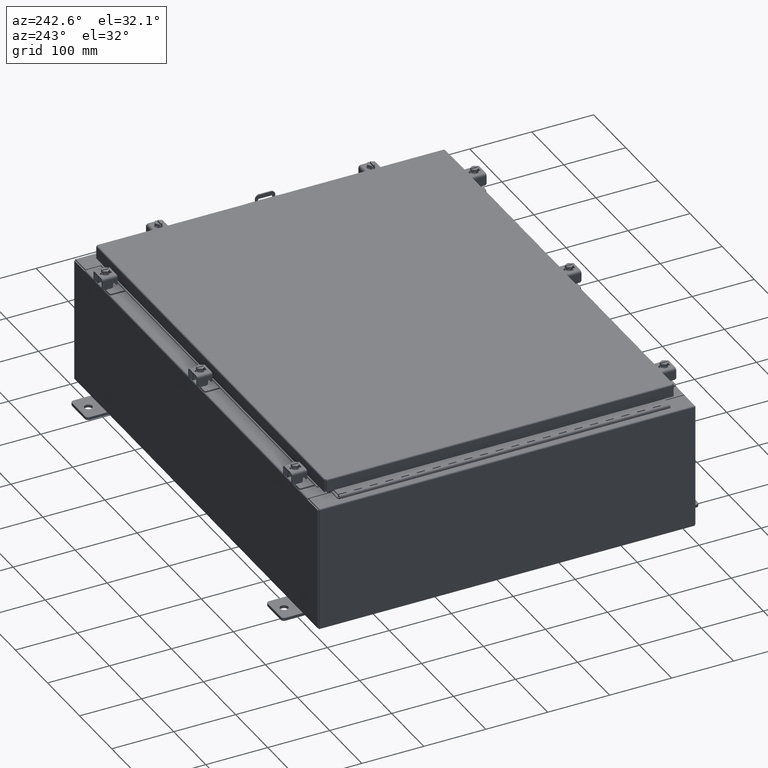
[diagram: clean part render]
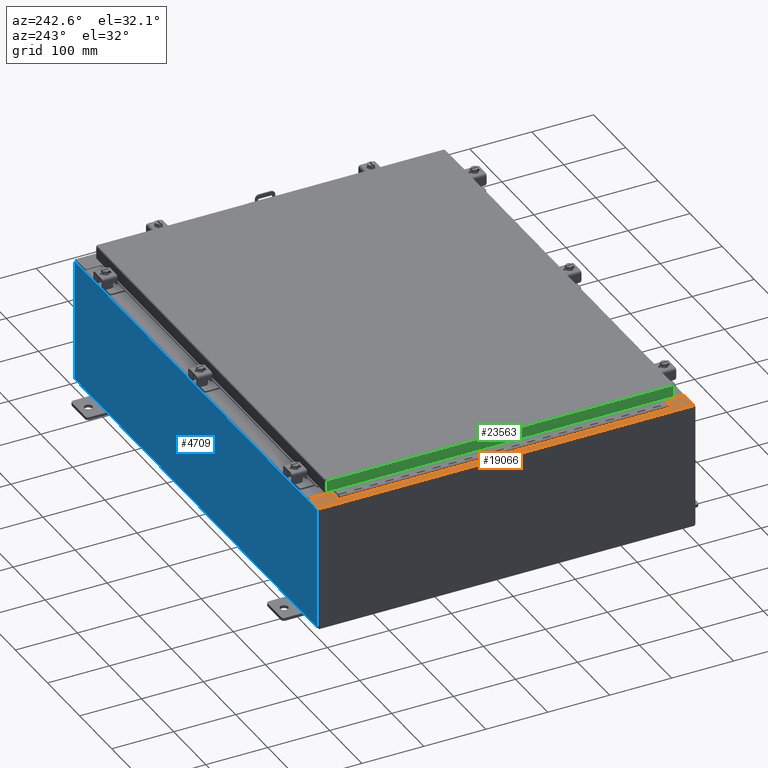
[diagram: same view with three faces highlighted in distinct colors, each labeled with its STEP entity id]
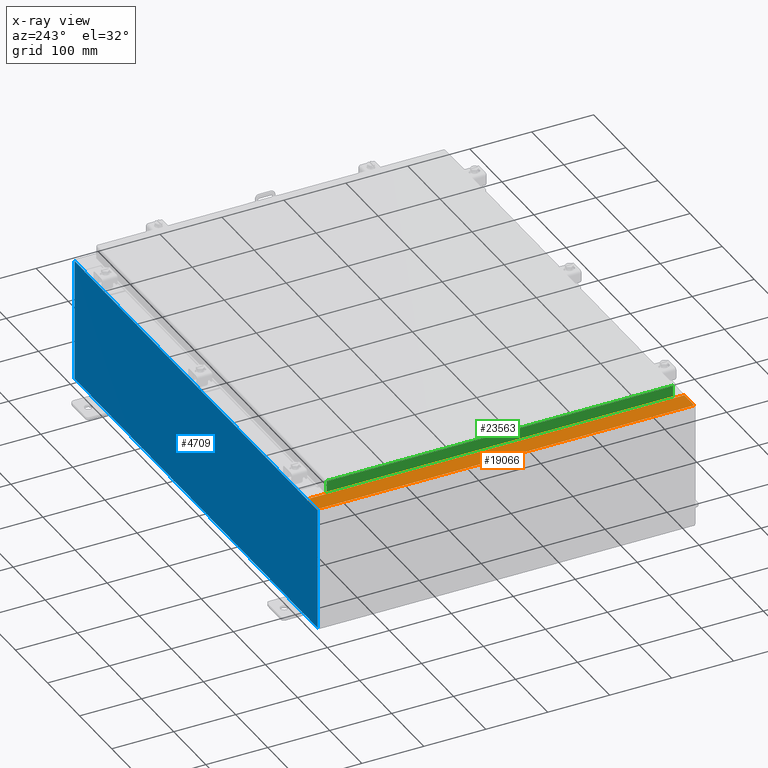
[diagram: x-ray of the same camera — body ghosted, the three highlighted faces saturated]
A machine part, auxiliary view with three faces highlighted in distinct colors.
The next image is the same camera in x-ray (body ghosted, the three faces saturated) — at least one of them is partly hidden behind the body in this view.
Their STEP definitions:

[orange] entity #19066 — the highlighted planar face has unit normal (0, 0, -1).
#35 = LINE ( 'NONE', #18521, #19618 ) ;
#165 = ORIENTED_EDGE ( 'NONE', *, *, #23350, .F. ) ;
#639 = DIRECTION ( 'NONE',  ( 1.000000000000000000, 0.0000000000000000000, 0.0000000000000000000 ) ) ;
#1030 = CARTESIAN_POINT ( 'NONE',  ( -13.69970000000003000, 10.63109999999999600, 7.925300000000008900 ) ) ;
#1387 = CARTESIAN_POINT ( 'NONE',  ( -5.679009539024888300E-014, 0.0000000000000000000, 7.925300000000105700 ) ) ;
#1478 = CARTESIAN_POINT ( 'NONE',  ( -13.71270000000003000, -10.59374999999999800, 7.925300000000008900 ) ) ;
#1771 = VERTEX_POINT ( 'NONE', #22801 ) ;
#2257 = CARTESIAN_POINT ( 'NONE',  ( -13.69970000000003000, 11.92529999999999800, 7.925300000000008900 ) ) ;
#2475 = CARTESIAN_POINT ( 'NONE',  ( -13.75005000000002800, -10.59374999999999800, 7.925300000000007100 ) ) ;
#2698 = CARTESIAN_POINT ( 'NONE',  ( -5.679009539024888300E-014, -11.92530000000000000, 7.925300000000105700 ) ) ;
#2725 = FACE_OUTER_BOUND ( 'NONE', #15579, .T. ) ;
#2940 = VECTOR ( 'NONE', #17045, 39.37007874015748100 ) ;
#3204 = LINE ( 'NONE', #31410, #15995 ) ;
#3210 = VECTOR ( 'NONE', #13629, 39.37007874015748100 ) ;
#3675 = CARTESIAN_POINT ( 'NONE',  ( -13.69970000000003000, -11.92530000000000000, 7.925300000000008900 ) ) ;
#3741 = VERTEX_POINT ( 'NONE', #10444 ) ;
#3927 = LINE ( 'NONE', #2698, #10720 ) ;
#4130 = ORIENTED_EDGE ( 'NONE', *, *, #30244, .T. ) ;
#4387 = EDGE_CURVE ( 'NONE', #7470, #10202, #13239, .T. ) ;
#4537 = VERTEX_POINT ( 'NONE', #3675 ) ;
#4593 = VECTOR ( 'NONE', #26524, 39.37007874015748100 ) ;
#4846 = DIRECTION ( 'NONE',  ( 0.0000000000000000000, 1.000000000000000000, 0.0000000000000000000 ) ) ;
#6518 = PLANE ( 'NONE',  #29465 ) ;
#7470 = VERTEX_POINT ( 'NONE', #27543 ) ;
#7645 = EDGE_CURVE ( 'NONE', #30920, #18163, #9870, .T. ) ;
#8064 = VERTEX_POINT ( 'NONE', #1030 ) ;
#8074 = VECTOR ( 'NONE', #16131, 39.37007874015748100 ) ;
#8963 = CARTESIAN_POINT ( 'NONE',  ( -13.75005000000002800, 10.59374999999999800, 7.925300000000007100 ) ) ;
#9105 = DIRECTION ( 'NONE',  ( 7.132762385546384700E-015, 0.0000000000000000000, -1.000000000000000000 ) ) ;
#9590 = DIRECTION ( 'NONE',  ( -1.000000000000000000, 0.0000000000000000000, 0.0000000000000000000 ) ) ;
#9842 = ORIENTED_EDGE ( 'NONE', *, *, #23535, .T. ) ;
#9870 = CIRCLE ( 'NONE', #19896, 0.01867499999999949400 ) ;
#10021 = LINE ( 'NONE', #16091, #3210 ) ;
#10092 = LINE ( 'NONE', #11767, #22869 ) ;
#10202 = VERTEX_POINT ( 'NONE', #8963 ) ;
#10273 = EDGE_CURVE ( 'NONE', #8064, #7470, #22554, .T. ) ;
#10444 = CARTESIAN_POINT ( 'NONE',  ( -13.69970000000003000, -10.63109999999999800, 7.925300000000008900 ) ) ;
#10720 = VECTOR ( 'NONE', #15448, 39.37007874015748100 ) ;
#10846 = DIRECTION ( 'NONE',  ( -7.132762385546384700E-015, -0.0000000000000000000, 1.000000000000000000 ) ) ;
#11767 = CARTESIAN_POINT ( 'NONE',  ( -13.69970000000003000, 0.0000000000000000000, 7.925300000000008900 ) ) ;
#12028 = CARTESIAN_POINT ( 'NONE',  ( -13.75005000000002800, -10.61242499999999800, 7.925300000000008900 ) ) ;
#12460 = EDGE_CURVE ( 'NONE', #27291, #1771, #3204, .T. ) ;
#13239 = CIRCLE ( 'NONE', #32366, 0.01867499999999949400 ) ;
#13401 = CARTESIAN_POINT ( 'NONE',  ( -13.75005000000002800, -10.63109999999999600, 7.925300000000007100 ) ) ;
#13456 = CARTESIAN_POINT ( 'NONE',  ( -13.71270000000003000, 10.59374999999999800, 7.925300000000008900 ) ) ;
#13546 = ORIENTED_EDGE ( 'NONE', *, *, #7645, .F. ) ;
#13629 = DIRECTION ( 'NONE',  ( 1.000000000000000000, 0.0000000000000000000, 0.0000000000000000000 ) ) ;
#14345 = DIRECTION ( 'NONE',  ( 0.0000000000000000000, 1.000000000000000000, 0.0000000000000000000 ) ) ;
#14397 = CARTESIAN_POINT ( 'NONE',  ( -14.91230000000002900, -11.92530000000000000, 7.925300000000000000 ) ) ;
#14605 = DIRECTION ( 'NONE',  ( 1.000000000000000000, 0.0000000000000000000, 0.0000000000000000000 ) ) ;
#14908 = LINE ( 'NONE', #13456, #8074 ) ;
#15448 = DIRECTION ( 'NONE',  ( 1.000000000000000000, -0.0000000000000000000, 7.132762385546384700E-015 ) ) ;
#15569 = EDGE_CURVE ( 'NONE', #4537, #3741, #29959, .T. ) ;
#15579 = EDGE_LOOP ( 'NONE', ( #25955, #9842, #22180, #23865, #4130, #31034, #19870, #13546, #24711, #165, #16219, #18947 ) ) ;
#15995 = VECTOR ( 'NONE', #23872, 39.37007874015748100 ) ;
#16091 = CARTESIAN_POINT ( 'NONE',  ( -13.75005000000002800, -10.63109999999999600, 7.925300000000008900 ) ) ;
#16120 = VERTEX_POINT ( 'NONE', #2257 ) ;
#16131 = DIRECTION ( 'NONE',  ( -0.0000000000000000000, -1.000000000000000000, -0.0000000000000000000 ) ) ;
#16219 = ORIENTED_EDGE ( 'NONE', *, *, #17422, .F. ) ;
#17045 = DIRECTION ( 'NONE',  ( -1.000000000000000000, 0.0000000000000000000, 0.0000000000000000000 ) ) ;
#17422 = EDGE_CURVE ( 'NONE', #10202, #31715, #35, .T. ) ;
#18163 = VERTEX_POINT ( 'NONE', #13401 ) ;
#18521 = CARTESIAN_POINT ( 'NONE',  ( -13.75005000000002800, 10.59374999999999800, 7.925300000000008900 ) ) ;
#18947 = ORIENTED_EDGE ( 'NONE', *, *, #4387, .F. ) ;
#19066 = ADVANCED_FACE ( 'NONE', ( #2725 ), #6518, .F. ) ;
#19618 = VECTOR ( 'NONE', #639, 39.37007874015748100 ) ;
#19870 = ORIENTED_EDGE ( 'NONE', *, *, #24069, .F. ) ;
#19896 = AXIS2_PLACEMENT_3D ( 'NONE', #12028, #29843, #14605 ) ;
#20148 = CARTESIAN_POINT ( 'NONE',  ( -13.69970000000003000, 0.0000000000000000000, 7.925300000000008900 ) ) ;
#21596 = EDGE_CURVE ( 'NONE', #16120, #1771, #24954, .T. ) ;
#22180 = ORIENTED_EDGE ( 'NONE', *, *, #21596, .T. ) ;
#22554 = LINE ( 'NONE', #24613, #2940 ) ;
#22801 = CARTESIAN_POINT ( 'NONE',  ( -14.91230000000002900, 11.92529999999999800, 7.925300000000000000 ) ) ;
#22869 = VECTOR ( 'NONE', #14345, 39.37007874015748100 ) ;
#23198 = VECTOR ( 'NONE', #4846, 39.37007874015748100 ) ;
#23350 = EDGE_CURVE ( 'NONE', #31715, #29973, #14908, .T. ) ;
#23535 = EDGE_CURVE ( 'NONE', #8064, #16120, #10092, .T. ) ;
#23865 = ORIENTED_EDGE ( 'NONE', *, *, #12460, .F. ) ;
#23872 = DIRECTION ( 'NONE',  ( -0.0000000000000000000, 1.000000000000000000, -0.0000000000000000000 ) ) ;
#23961 = CARTESIAN_POINT ( 'NONE',  ( -5.679009539024888300E-014, 11.92529999999999800, 7.925300000000105700 ) ) ;
#24069 = EDGE_CURVE ( 'NONE', #18163, #3741, #10021, .T. ) ;
#24613 = CARTESIAN_POINT ( 'NONE',  ( -13.69970000000003000, 10.63109999999999600, 7.925300000000008900 ) ) ;
#24711 = ORIENTED_EDGE ( 'NONE', *, *, #32871, .F. ) ;
#24954 = LINE ( 'NONE', #23961, #4593 ) ;
#25813 = LINE ( 'NONE', #29955, #31745 ) ;
#25955 = ORIENTED_EDGE ( 'NONE', *, *, #10273, .F. ) ;
#26120 = CARTESIAN_POINT ( 'NONE',  ( -13.75005000000002800, 10.61242499999999800, 7.925300000000008900 ) ) ;
#26524 = DIRECTION ( 'NONE',  ( -1.000000000000000000, 0.0000000000000000000, -7.132762385546384700E-015 ) ) ;
#26946 = DIRECTION ( 'NONE',  ( -1.000000000000000000, 0.0000000000000000000, -7.132762385546384700E-015 ) ) ;
#27291 = VERTEX_POINT ( 'NONE', #14397 ) ;
#27543 = CARTESIAN_POINT ( 'NONE',  ( -13.75005000000002800, 10.63109999999999600, 7.925300000000007100 ) ) ;
#28665 = DIRECTION ( 'NONE',  ( 1.000000000000000000, 0.0000000000000000000, 0.0000000000000000000 ) ) ;
#29465 = AXIS2_PLACEMENT_3D ( 'NONE', #1387, #9105, #26946 ) ;
#29843 = DIRECTION ( 'NONE',  ( -7.132762385546384700E-015, -0.0000000000000000000, 1.000000000000000000 ) ) ;
#29955 = CARTESIAN_POINT ( 'NONE',  ( -13.71270000000003000, -10.59374999999999800, 7.925300000000008900 ) ) ;
#29959 = LINE ( 'NONE', #20148, #23198 ) ;
#29973 = VERTEX_POINT ( 'NONE', #1478 ) ;
#30244 = EDGE_CURVE ( 'NONE', #27291, #4537, #3927, .T. ) ;
#30920 = VERTEX_POINT ( 'NONE', #2475 ) ;
#31034 = ORIENTED_EDGE ( 'NONE', *, *, #15569, .T. ) ;
#31061 = CARTESIAN_POINT ( 'NONE',  ( -13.71270000000003000, 10.59374999999999800, 7.925300000000008900 ) ) ;
#31410 = CARTESIAN_POINT ( 'NONE',  ( -14.91230000000002900, 11.92529999999999800, 7.925300000000000000 ) ) ;
#31715 = VERTEX_POINT ( 'NONE', #31061 ) ;
#31745 = VECTOR ( 'NONE', #9590, 39.37007874015748100 ) ;
#32366 = AXIS2_PLACEMENT_3D ( 'NONE', #26120, #10846, #28665 ) ;
#32871 = EDGE_CURVE ( 'NONE', #29973, #30920, #25813, .T. ) ;

[blue] entity #4709 — the highlighted planar face has unit normal (0, -1, 0).
#874 = DIRECTION ( 'NONE',  ( 0.0000000000000000000, 0.0000000000000000000, 1.000000000000000000 ) ) ;
#1109 = CARTESIAN_POINT ( 'NONE',  ( -14.92529999999999800, 0.0000000000000000000, 3.925299999999999600 ) ) ;
#1246 = VERTEX_POINT ( 'NONE', #8056 ) ;
#1271 = EDGE_CURVE ( 'NONE', #28083, #20246, #26280, .T. ) ;
#1349 = DIRECTION ( 'NONE',  ( 0.0000000000000000000, 0.0000000000000000000, -1.000000000000000000 ) ) ;
#1635 = CARTESIAN_POINT ( 'NONE',  ( 13.67454999999983300, 0.0000000000000000000, -5.933573842238779900E-013 ) ) ;
#1707 = EDGE_CURVE ( 'NONE', #20246, #4100, #7499, .T. ) ;
#1840 = ORIENTED_EDGE ( 'NONE', *, *, #10866, .F. ) ;
#3051 = DIRECTION ( 'NONE',  ( 1.000000000000000000, 0.0000000000000000000, 0.0000000000000000000 ) ) ;
#3229 = CARTESIAN_POINT ( 'NONE',  ( -13.63719999999999600, 0.0000000000000000000, 0.0000000000000000000 ) ) ;
#3290 = LINE ( 'NONE', #4907, #10106 ) ;
#3898 = CARTESIAN_POINT ( 'NONE',  ( 13.63720000000000400, 0.0000000000000000000, 3.912299999999999700 ) ) ;
#4100 = VERTEX_POINT ( 'NONE', #16927 ) ;
#4709 = ADVANCED_FACE ( 'NONE', ( #13627 ), #13958, .F. ) ;
#4873 = CIRCLE ( 'NONE', #27298, 0.01867499999999949400 ) ;
#4907 = CARTESIAN_POINT ( 'NONE',  ( -14.92529999999999800, 0.0000000000000000000, 3.925299999999999600 ) ) ;
#5381 = ORIENTED_EDGE ( 'NONE', *, *, #16750, .F. ) ;
#5467 = DIRECTION ( 'NONE',  ( 0.0000000000000000000, 0.0000000000000000000, 1.000000000000000000 ) ) ;
#5706 = DIRECTION ( 'NONE',  ( -0.0000000000000000000, 1.000000000000000000, -0.0000000000000000000 ) ) ;
#5797 = DIRECTION ( 'NONE',  ( 0.0000000000000000000, 0.0000000000000000000, -1.000000000000000000 ) ) ;
#6537 = VECTOR ( 'NONE', #24860, 39.37007874015748100 ) ;
#7004 = ORIENTED_EDGE ( 'NONE', *, *, #28109, .F. ) ;
#7499 = LINE ( 'NONE', #17475, #27057 ) ;
#8056 = CARTESIAN_POINT ( 'NONE',  ( -13.63719999999999600, 0.0000000000000000000, 3.874949999999999700 ) ) ;
#8109 = ORIENTED_EDGE ( 'NONE', *, *, #27358, .T. ) ;
#8153 = ORIENTED_EDGE ( 'NONE', *, *, #21813, .F. ) ;
#8175 = CARTESIAN_POINT ( 'NONE',  ( -14.92529999999999800, 0.0000000000000000000, 3.925299999999999600 ) ) ;
#8777 = CARTESIAN_POINT ( 'NONE',  ( -13.67454999999999500, 0.0000000000000000000, 3.925299999999999600 ) ) ;
#9479 = DIRECTION ( 'NONE',  ( -4.340572780400004900E-014, 0.0000000000000000000, -1.000000000000000000 ) ) ;
#9975 = VECTOR ( 'NONE', #5797, 39.37007874015748100 ) ;
#10106 = VECTOR ( 'NONE', #12619, 39.37007874015748100 ) ;
#10866 = EDGE_CURVE ( 'NONE', #20138, #21620, #24471, .T. ) ;
#12152 = CARTESIAN_POINT ( 'NONE',  ( 14.92530000000000200, 0.0000000000000000000, 3.925299999999999600 ) ) ;
#12619 = DIRECTION ( 'NONE',  ( -0.0000000000000000000, -0.0000000000000000000, 1.000000000000000000 ) ) ;
#12911 = CARTESIAN_POINT ( 'NONE',  ( -14.92529999999999800, 0.0000000000000000000, -3.925299999999999600 ) ) ;
#13617 = CARTESIAN_POINT ( 'NONE',  ( -13.63719999999999600, 0.0000000000000000000, 3.912299999999999700 ) ) ;
#13627 = FACE_OUTER_BOUND ( 'NONE', #23735, .T. ) ;
#13886 = CARTESIAN_POINT ( 'NONE',  ( 13.67455000000000400, 0.0000000000000000000, 3.925299999999999600 ) ) ;
#13958 = PLANE ( 'NONE',  #14058 ) ;
#14058 = AXIS2_PLACEMENT_3D ( 'NONE', #29183, #31751, #16528 ) ;
#14293 = CARTESIAN_POINT ( 'NONE',  ( -13.67454999999999500, 0.0000000000000000000, 3.874949999999999700 ) ) ;
#14485 = CARTESIAN_POINT ( 'NONE',  ( -14.92529999999999800, 0.0000000000000000000, -3.925299999999999600 ) ) ;
#14853 = CIRCLE ( 'NONE', #25107, 0.01867499999999949400 ) ;
#15075 = VERTEX_POINT ( 'NONE', #12911 ) ;
#16175 = VERTEX_POINT ( 'NONE', #25339 ) ;
#16528 = DIRECTION ( 'NONE',  ( 0.0000000000000000000, -0.0000000000000000000, -1.000000000000000000 ) ) ;
#16615 = ORIENTED_EDGE ( 'NONE', *, *, #18185, .F. ) ;
#16693 = DIRECTION ( 'NONE',  ( -0.0000000000000000000, 1.000000000000000000, -0.0000000000000000000 ) ) ;
#16750 = EDGE_CURVE ( 'NONE', #16175, #21039, #4873, .T. ) ;
#16775 = LINE ( 'NONE', #3229, #9975 ) ;
#16829 = LINE ( 'NONE', #26326, #24388 ) ;
#16856 = DIRECTION ( 'NONE',  ( 1.000000000000000000, 0.0000000000000000000, 0.0000000000000000000 ) ) ;
#16927 = CARTESIAN_POINT ( 'NONE',  ( 14.92530000000000200, 0.0000000000000000000, -3.925299999999999600 ) ) ;
#16973 = ORIENTED_EDGE ( 'NONE', *, *, #1707, .T. ) ;
#17475 = CARTESIAN_POINT ( 'NONE',  ( 14.92530000000000200, 0.0000000000000000000, 3.925299999999999600 ) ) ;
#17541 = DIRECTION ( 'NONE',  ( 1.000000000000000000, 0.0000000000000000000, 0.0000000000000000000 ) ) ;
#17719 = VECTOR ( 'NONE', #5467, 39.37007874015748100 ) ;
#17827 = ORIENTED_EDGE ( 'NONE', *, *, #28969, .T. ) ;
#18015 = VECTOR ( 'NONE', #17541, 39.37007874015748100 ) ;
#18158 = ORIENTED_EDGE ( 'NONE', *, *, #21827, .T. ) ;
#18185 = EDGE_CURVE ( 'NONE', #18208, #1246, #16775, .T. ) ;
#18208 = VERTEX_POINT ( 'NONE', #13617 ) ;
#18505 = LINE ( 'NONE', #27091, #31214 ) ;
#19345 = VECTOR ( 'NONE', #9479, 39.37007874015748100 ) ;
#20138 = VERTEX_POINT ( 'NONE', #14293 ) ;
#20246 = VERTEX_POINT ( 'NONE', #12152 ) ;
#21035 = CARTESIAN_POINT ( 'NONE',  ( 13.65587500000000200, 0.0000000000000000000, 3.874949999999999700 ) ) ;
#21039 = VERTEX_POINT ( 'NONE', #23987 ) ;
#21620 = VERTEX_POINT ( 'NONE', #8777 ) ;
#21813 = EDGE_CURVE ( 'NONE', #28083, #16175, #26099, .T. ) ;
#21827 = EDGE_CURVE ( 'NONE', #4100, #15075, #32846, .T. ) ;
#22193 = ORIENTED_EDGE ( 'NONE', *, *, #24097, .F. ) ;
#22282 = VERTEX_POINT ( 'NONE', #3898 ) ;
#22345 = EDGE_CURVE ( 'NONE', #32041, #21620, #18505, .T. ) ;
#22438 = CARTESIAN_POINT ( 'NONE',  ( -13.63719999999999800, 0.0000000000000000000, 3.912299999999999700 ) ) ;
#23324 = CARTESIAN_POINT ( 'NONE',  ( -13.67454999999999500, 0.0000000000000000000, 0.0000000000000000000 ) ) ;
#23564 = DIRECTION ( 'NONE',  ( 0.0000000000000000000, 0.0000000000000000000, -1.000000000000000000 ) ) ;
#23735 = EDGE_LOOP ( 'NONE', ( #1840, #7004, #16615, #17827, #22193, #5381, #8153, #25338, #16973, #18158, #8109, #24507 ) ) ;
#23987 = CARTESIAN_POINT ( 'NONE',  ( 13.63720000000000400, 0.0000000000000000000, 3.874949999999999700 ) ) ;
#24097 = EDGE_CURVE ( 'NONE', #21039, #22282, #16829, .T. ) ;
#24388 = VECTOR ( 'NONE', #874, 39.37007874015748100 ) ;
#24471 = LINE ( 'NONE', #23324, #17719 ) ;
#24507 = ORIENTED_EDGE ( 'NONE', *, *, #22345, .T. ) ;
#24779 = LINE ( 'NONE', #22438, #18015 ) ;
#24860 = DIRECTION ( 'NONE',  ( -1.000000000000000000, -0.0000000000000000000, -0.0000000000000000000 ) ) ;
#25107 = AXIS2_PLACEMENT_3D ( 'NONE', #31877, #16693, #1349 ) ;
#25338 = ORIENTED_EDGE ( 'NONE', *, *, #1271, .T. ) ;
#25339 = CARTESIAN_POINT ( 'NONE',  ( 13.67455000000000200, 0.0000000000000000000, 3.874949999999999700 ) ) ;
#26099 = LINE ( 'NONE', #1635, #19345 ) ;
#26280 = LINE ( 'NONE', #8175, #31433 ) ;
#26326 = CARTESIAN_POINT ( 'NONE',  ( 13.63720000000000400, 0.0000000000000000000, 0.0000000000000000000 ) ) ;
#27057 = VECTOR ( 'NONE', #32756, 39.37007874015748100 ) ;
#27091 = CARTESIAN_POINT ( 'NONE',  ( -14.92529999999999800, 0.0000000000000000000, 3.925299999999999600 ) ) ;
#27298 = AXIS2_PLACEMENT_3D ( 'NONE', #21035, #5706, #23564 ) ;
#27358 = EDGE_CURVE ( 'NONE', #15075, #32041, #3290, .T. ) ;
#28083 = VERTEX_POINT ( 'NONE', #13886 ) ;
#28109 = EDGE_CURVE ( 'NONE', #1246, #20138, #14853, .T. ) ;
#28969 = EDGE_CURVE ( 'NONE', #18208, #22282, #24779, .T. ) ;
#29183 = CARTESIAN_POINT ( 'NONE',  ( 0.0000000000000000000, 0.0000000000000000000, 0.0000000000000000000 ) ) ;
#31214 = VECTOR ( 'NONE', #16856, 39.37007874015748100 ) ;
#31433 = VECTOR ( 'NONE', #3051, 39.37007874015748100 ) ;
#31751 = DIRECTION ( 'NONE',  ( 0.0000000000000000000, -1.000000000000000000, 0.0000000000000000000 ) ) ;
#31877 = CARTESIAN_POINT ( 'NONE',  ( -13.65587499999999600, 0.0000000000000000000, 3.874949999999999700 ) ) ;
#32041 = VERTEX_POINT ( 'NONE', #1109 ) ;
#32756 = DIRECTION ( 'NONE',  ( 0.0000000000000000000, 0.0000000000000000000, -1.000000000000000000 ) ) ;
#32846 = LINE ( 'NONE', #14485, #6537 ) ;

[green] entity #23563 — the highlighted planar face has unit normal (1, 0, -0).
#615 = DIRECTION ( 'NONE',  ( 3.735695558659274900E-031, -1.000000000000000000, -1.101212895818006000E-045 ) ) ;
#1047 = CARTESIAN_POINT ( 'NONE',  ( -14.07799999999999800, -11.00515786437626900, -0.08770000000000026400 ) ) ;
#4091 = EDGE_CURVE ( 'NONE', #27787, #17458, #21256, .T. ) ;
#5279 = LINE ( 'NONE', #31839, #24862 ) ;
#6122 = VERTEX_POINT ( 'NONE', #1047 ) ;
#8556 = VECTOR ( 'NONE', #26803, 39.37007874015748100 ) ;
#9301 = PLANE ( 'NONE',  #15732 ) ;
#9881 = CARTESIAN_POINT ( 'NONE',  ( -14.07799999999999800, 11.00515786437626900, -0.08770000000000026400 ) ) ;
#10227 = ORIENTED_EDGE ( 'NONE', *, *, #11134, .F. ) ;
#11134 = EDGE_CURVE ( 'NONE', #6122, #27787, #5279, .T. ) ;
#11437 = CARTESIAN_POINT ( 'NONE',  ( -14.07799999999999800, 11.00515786437626700, 1.202013117212275900E-013 ) ) ;
#11893 = DIRECTION ( 'NONE',  ( -3.034122441942816500E-015, 0.0000000000000000000, -1.000000000000000000 ) ) ;
#12572 = CARTESIAN_POINT ( 'NONE',  ( -14.07799999999999900, -11.00515786437626700, -0.7949999999999996000 ) ) ;
#13294 = EDGE_CURVE ( 'NONE', #13571, #17458, #15381, .T. ) ;
#13571 = VERTEX_POINT ( 'NONE', #9881 ) ;
#13603 = CARTESIAN_POINT ( 'NONE',  ( -14.07799999999999900, 11.00515786437627100, -0.7949999999999973800 ) ) ;
#14337 = VECTOR ( 'NONE', #615, 39.37007874015748100 ) ;
#14991 = EDGE_LOOP ( 'NONE', ( #29371, #17345, #17334, #10227 ) ) ;
#15381 = LINE ( 'NONE', #11437, #8556 ) ;
#15732 = AXIS2_PLACEMENT_3D ( 'NONE', #19485, #27142, #11893 ) ;
#17334 = ORIENTED_EDGE ( 'NONE', *, *, #4091, .F. ) ;
#17345 = ORIENTED_EDGE ( 'NONE', *, *, #13294, .T. ) ;
#17458 = VERTEX_POINT ( 'NONE', #13603 ) ;
#18844 = EDGE_CURVE ( 'NONE', #13571, #6122, #21124, .T. ) ;
#19485 = CARTESIAN_POINT ( 'NONE',  ( -14.07799999999999800, 0.0000000000000000000, 4.261682870116250900E-014 ) ) ;
#20467 = VECTOR ( 'NONE', #27151, 39.37007874015748100 ) ;
#21124 = LINE ( 'NONE', #31145, #14337 ) ;
#21256 = LINE ( 'NONE', #32132, #20467 ) ;
#23563 = ADVANCED_FACE ( 'NONE', ( #29600 ), #9301, .F. ) ;
#24862 = VECTOR ( 'NONE', #29291, 39.37007874015748100 ) ;
#26803 = DIRECTION ( 'NONE',  ( -3.034122441942816500E-015, 6.982962677686265900E-015, -1.000000000000000000 ) ) ;
#27142 = DIRECTION ( 'NONE',  ( 1.000000000000000000, 3.735695558659274400E-031, -3.034122441942816500E-015 ) ) ;
#27151 = DIRECTION ( 'NONE',  ( 4.379057701015054300E-047, 1.000000000000000000, 1.231227687788112300E-016 ) ) ;
#27787 = VERTEX_POINT ( 'NONE', #12572 ) ;
#29291 = DIRECTION ( 'NONE',  ( -3.034122441942816500E-015, 6.982962677686265900E-015, -1.000000000000000000 ) ) ;
#29371 = ORIENTED_EDGE ( 'NONE', *, *, #18844, .F. ) ;
#29600 = FACE_OUTER_BOUND ( 'NONE', #14991, .T. ) ;
#31145 = CARTESIAN_POINT ( 'NONE',  ( -14.07799999999999800, -11.09400000000000100, -0.08770000000000026400 ) ) ;
#31839 = CARTESIAN_POINT ( 'NONE',  ( -14.07799999999999800, -11.00515786437627100, -0.07470000000000015500 ) ) ;
#32132 = CARTESIAN_POINT ( 'NONE',  ( -14.07799999999999900, -11.09400000000000100, -0.7949999999999996000 ) ) ;